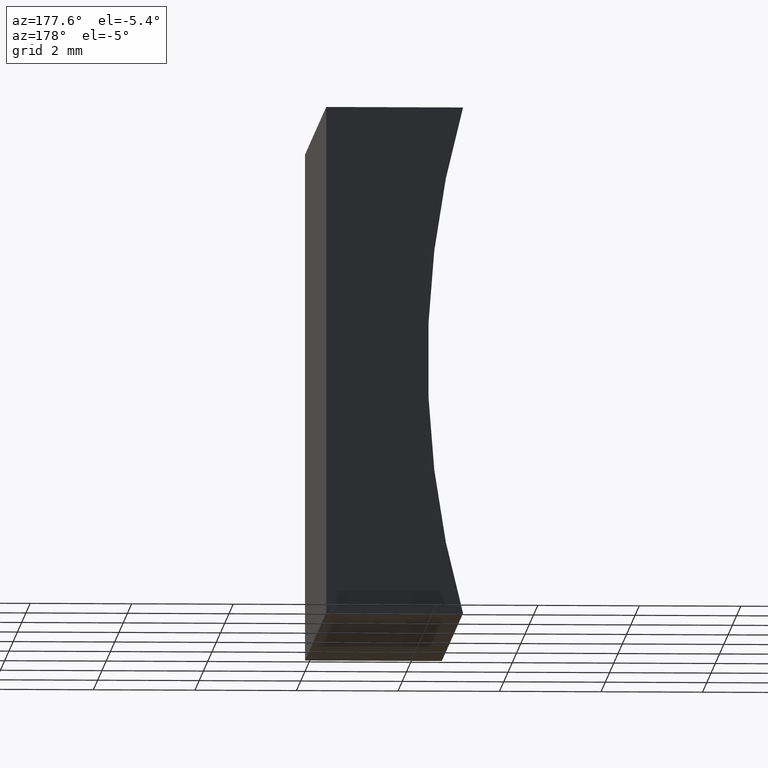
[diagram: clean part render]
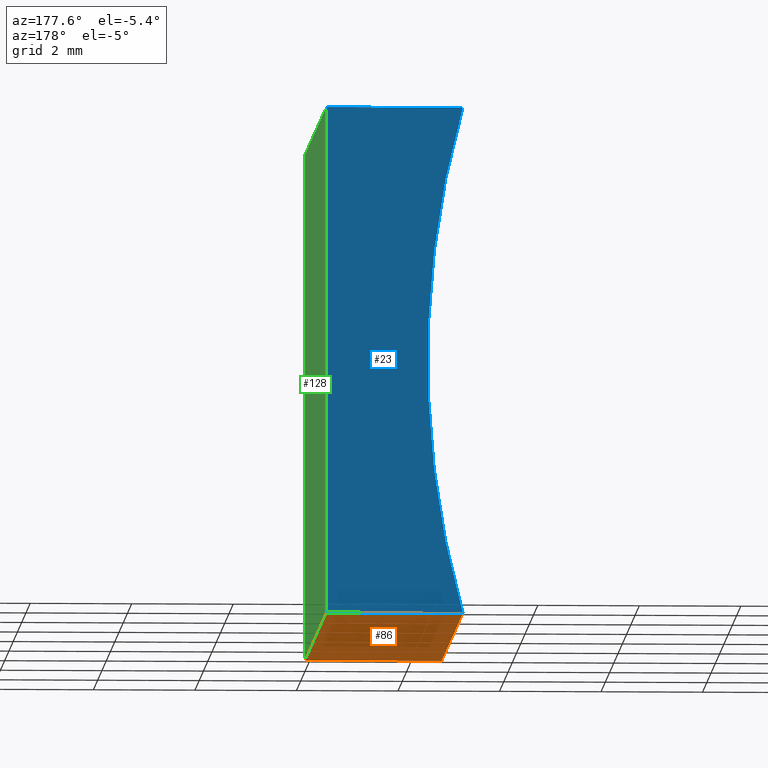
[diagram: same view with three faces highlighted in distinct colors, each labeled with its STEP entity id]
A machine part, auxiliary view with three faces highlighted in distinct colors.
Their STEP definitions:

[orange] entity #86 — the highlighted planar face has unit normal (0, -0, 1).
#2 = VECTOR ( 'NONE', #146, 1000.000000000000000 ) ;
#5 = EDGE_CURVE ( 'NONE', #133, #129, #28, .T. ) ;
#14 = CARTESIAN_POINT ( 'NONE',  ( 0.0000000000000000000, 0.0000000000000000000, 0.0000000000000000000 ) ) ;
#15 = CARTESIAN_POINT ( 'NONE',  ( 0.0000000000000000000, 10.00000000000000000, 0.0000000000000000000 ) ) ;
#20 = VECTOR ( 'NONE', #141, 1000.000000000000000 ) ;
#26 = AXIS2_PLACEMENT_3D ( 'NONE', #15, #202, #64 ) ;
#28 = LINE ( 'NONE', #134, #20 ) ;
#36 = CARTESIAN_POINT ( 'NONE',  ( 0.0000000000000000000, 0.0000000000000000000, 0.0000000000000000000 ) ) ;
#43 = VECTOR ( 'NONE', #174, 1000.000000000000000 ) ;
#45 = CARTESIAN_POINT ( 'NONE',  ( 0.0000000000000000000, 10.00000000000000000, 0.0000000000000000000 ) ) ;
#46 = FACE_OUTER_BOUND ( 'NONE', #153, .T. ) ;
#53 = EDGE_CURVE ( 'NONE', #102, #117, #152, .T. ) ;
#62 = EDGE_CURVE ( 'NONE', #133, #102, #65, .T. ) ;
#64 = DIRECTION ( 'NONE',  ( 1.000000000000000000, 0.0000000000000000000, -1.430855114987436600E-016 ) ) ;
#65 = LINE ( 'NONE', #200, #2 ) ;
#67 = CARTESIAN_POINT ( 'NONE',  ( -2.695517028860110000, 0.0000000000000000000, 8.673617379884035500E-016 ) ) ;
#71 = VECTOR ( 'NONE', #150, 1000.000000000000000 ) ;
#73 = LINE ( 'NONE', #36, #43 ) ;
#86 = ADVANCED_FACE ( 'NONE', ( #46 ), #113, .F. ) ;
#92 = CARTESIAN_POINT ( 'NONE',  ( -2.695517028860110000, 10.00000000000000000, 8.673617379884035500E-016 ) ) ;
#102 = VERTEX_POINT ( 'NONE', #163 ) ;
#113 = PLANE ( 'NONE',  #26 ) ;
#117 = VERTEX_POINT ( 'NONE', #67 ) ;
#129 = VERTEX_POINT ( 'NONE', #14 ) ;
#133 = VERTEX_POINT ( 'NONE', #45 ) ;
#134 = CARTESIAN_POINT ( 'NONE',  ( 0.0000000000000000000, 10.00000000000000000, 0.0000000000000000000 ) ) ;
#139 = EDGE_CURVE ( 'NONE', #129, #117, #73, .T. ) ;
#141 = DIRECTION ( 'NONE',  ( -0.0000000000000000000, -1.000000000000000000, -0.0000000000000000000 ) ) ;
#146 = DIRECTION ( 'NONE',  ( -1.000000000000000000, 0.0000000000000000000, 1.430855114987436600E-016 ) ) ;
#147 = ORIENTED_EDGE ( 'NONE', *, *, #53, .F. ) ;
#150 = DIRECTION ( 'NONE',  ( -0.0000000000000000000, -1.000000000000000000, -0.0000000000000000000 ) ) ;
#152 = LINE ( 'NONE', #92, #71 ) ;
#153 = EDGE_LOOP ( 'NONE', ( #168, #147, #194, #158 ) ) ;
#158 = ORIENTED_EDGE ( 'NONE', *, *, #5, .T. ) ;
#163 = CARTESIAN_POINT ( 'NONE',  ( -2.695517028860110000, 10.00000000000000000, 8.673617379884035500E-016 ) ) ;
#168 = ORIENTED_EDGE ( 'NONE', *, *, #139, .T. ) ;
#174 = DIRECTION ( 'NONE',  ( -1.000000000000000000, 0.0000000000000000000, 1.430855114987436600E-016 ) ) ;
#194 = ORIENTED_EDGE ( 'NONE', *, *, #62, .F. ) ;
#200 = CARTESIAN_POINT ( 'NONE',  ( 0.0000000000000000000, 10.00000000000000000, 0.0000000000000000000 ) ) ;
#202 = DIRECTION ( 'NONE',  ( 1.430855114987436600E-016, -0.0000000000000000000, 1.000000000000000000 ) ) ;

[blue] entity #23 — the highlighted planar face has unit normal (0, 1, 0).
#2 = VECTOR ( 'NONE', #146, 1000.000000000000000 ) ;
#3 = LINE ( 'NONE', #188, #68 ) ;
#16 = DIRECTION ( 'NONE',  ( 1.000000000000000000, -0.0000000000000000000, -6.435587152311161100E-016 ) ) ;
#19 = AXIS2_PLACEMENT_3D ( 'NONE', #197, #74, #186 ) ;
#23 = ADVANCED_FACE ( 'NONE', ( #32 ), #151, .T. ) ;
#29 = DIRECTION ( 'NONE',  ( 0.0000000000000000000, 1.000000000000000000, 0.0000000000000000000 ) ) ;
#32 = FACE_OUTER_BOUND ( 'NONE', #149, .T. ) ;
#35 = ORIENTED_EDGE ( 'NONE', *, *, #124, .T. ) ;
#45 = CARTESIAN_POINT ( 'NONE',  ( 0.0000000000000000000, 10.00000000000000000, 0.0000000000000000000 ) ) ;
#48 = EDGE_CURVE ( 'NONE', #102, #181, #172, .T. ) ;
#50 = EDGE_CURVE ( 'NONE', #180, #133, #58, .T. ) ;
#52 = DIRECTION ( 'NONE',  ( 0.0000000000000000000, -0.0000000000000000000, 1.000000000000000000 ) ) ;
#58 = LINE ( 'NONE', #108, #70 ) ;
#62 = EDGE_CURVE ( 'NONE', #133, #102, #65, .T. ) ;
#65 = LINE ( 'NONE', #200, #2 ) ;
#68 = VECTOR ( 'NONE', #16, 1000.000000000000000 ) ;
#70 = VECTOR ( 'NONE', #97, 1000.000000000000000 ) ;
#74 = DIRECTION ( 'NONE',  ( -0.0000000000000000000, -1.000000000000000000, -0.0000000000000000000 ) ) ;
#75 = AXIS2_PLACEMENT_3D ( 'NONE', #121, #29, #52 ) ;
#97 = DIRECTION ( 'NONE',  ( -6.123233995736766000E-017, -0.0000000000000000000, -1.000000000000000000 ) ) ;
#98 = CARTESIAN_POINT ( 'NONE',  ( 6.123233995736766300E-016, 10.00000000000000000, 10.00000000000000000 ) ) ;
#102 = VERTEX_POINT ( 'NONE', #163 ) ;
#108 = CARTESIAN_POINT ( 'NONE',  ( 0.0000000000000000000, 10.00000000000000000, 0.0000000000000000000 ) ) ;
#119 = ORIENTED_EDGE ( 'NONE', *, *, #48, .T. ) ;
#121 = CARTESIAN_POINT ( 'NONE',  ( -20.31999999999999700, 10.00000000000000000, 5.000000000000000000 ) ) ;
#123 = ORIENTED_EDGE ( 'NONE', *, *, #50, .T. ) ;
#124 = EDGE_CURVE ( 'NONE', #181, #180, #3, .T. ) ;
#133 = VERTEX_POINT ( 'NONE', #45 ) ;
#136 = ORIENTED_EDGE ( 'NONE', *, *, #62, .T. ) ;
#137 = CARTESIAN_POINT ( 'NONE',  ( -2.695517028860108200, 10.00000000000000000, 10.00000000000000200 ) ) ;
#146 = DIRECTION ( 'NONE',  ( -1.000000000000000000, 0.0000000000000000000, 1.430855114987436600E-016 ) ) ;
#149 = EDGE_LOOP ( 'NONE', ( #136, #119, #35, #123 ) ) ;
#151 = PLANE ( 'NONE',  #75 ) ;
#163 = CARTESIAN_POINT ( 'NONE',  ( -2.695517028860110000, 10.00000000000000000, 8.673617379884035500E-016 ) ) ;
#172 = CIRCLE ( 'NONE', #19, 18.31999999999999700 ) ;
#180 = VERTEX_POINT ( 'NONE', #98 ) ;
#181 = VERTEX_POINT ( 'NONE', #137 ) ;
#186 = DIRECTION ( 'NONE',  ( 0.0000000000000000000, 0.0000000000000000000, 1.000000000000000000 ) ) ;
#188 = CARTESIAN_POINT ( 'NONE',  ( 6.123233995736766300E-016, 10.00000000000000000, 10.00000000000000000 ) ) ;
#197 = CARTESIAN_POINT ( 'NONE',  ( -20.31999999999999700, 10.00000000000000000, 5.000000000000000000 ) ) ;
#200 = CARTESIAN_POINT ( 'NONE',  ( 0.0000000000000000000, 10.00000000000000000, 0.0000000000000000000 ) ) ;

[green] entity #128 — the highlighted planar face has unit normal (-1, 0, 0).
#5 = EDGE_CURVE ( 'NONE', #133, #129, #28, .T. ) ;
#14 = CARTESIAN_POINT ( 'NONE',  ( 0.0000000000000000000, 0.0000000000000000000, 0.0000000000000000000 ) ) ;
#20 = VECTOR ( 'NONE', #141, 1000.000000000000000 ) ;
#21 = EDGE_CURVE ( 'NONE', #105, #129, #203, .T. ) ;
#28 = LINE ( 'NONE', #134, #20 ) ;
#37 = CARTESIAN_POINT ( 'NONE',  ( 6.123233995736766300E-016, 10.00000000000000000, 10.00000000000000000 ) ) ;
#40 = FACE_OUTER_BOUND ( 'NONE', #77, .T. ) ;
#45 = CARTESIAN_POINT ( 'NONE',  ( 0.0000000000000000000, 10.00000000000000000, 0.0000000000000000000 ) ) ;
#50 = EDGE_CURVE ( 'NONE', #180, #133, #58, .T. ) ;
#51 = LINE ( 'NONE', #37, #76 ) ;
#58 = LINE ( 'NONE', #108, #70 ) ;
#59 = PLANE ( 'NONE',  #107 ) ;
#70 = VECTOR ( 'NONE', #97, 1000.000000000000000 ) ;
#76 = VECTOR ( 'NONE', #184, 1000.000000000000000 ) ;
#77 = EDGE_LOOP ( 'NONE', ( #177, #162, #157, #148 ) ) ;
#81 = DIRECTION ( 'NONE',  ( -1.000000000000000000, 0.0000000000000000000, 6.123233995736766000E-017 ) ) ;
#97 = DIRECTION ( 'NONE',  ( -6.123233995736766000E-017, -0.0000000000000000000, -1.000000000000000000 ) ) ;
#98 = CARTESIAN_POINT ( 'NONE',  ( 6.123233995736766300E-016, 10.00000000000000000, 10.00000000000000000 ) ) ;
#105 = VERTEX_POINT ( 'NONE', #196 ) ;
#107 = AXIS2_PLACEMENT_3D ( 'NONE', #142, #81, #169 ) ;
#108 = CARTESIAN_POINT ( 'NONE',  ( 0.0000000000000000000, 10.00000000000000000, 0.0000000000000000000 ) ) ;
#122 = DIRECTION ( 'NONE',  ( -6.123233995736766000E-017, -0.0000000000000000000, -1.000000000000000000 ) ) ;
#128 = ADVANCED_FACE ( 'NONE', ( #40 ), #59, .F. ) ;
#129 = VERTEX_POINT ( 'NONE', #14 ) ;
#133 = VERTEX_POINT ( 'NONE', #45 ) ;
#134 = CARTESIAN_POINT ( 'NONE',  ( 0.0000000000000000000, 10.00000000000000000, 0.0000000000000000000 ) ) ;
#141 = DIRECTION ( 'NONE',  ( -0.0000000000000000000, -1.000000000000000000, -0.0000000000000000000 ) ) ;
#142 = CARTESIAN_POINT ( 'NONE',  ( 0.0000000000000000000, 10.00000000000000000, 0.0000000000000000000 ) ) ;
#145 = VECTOR ( 'NONE', #122, 1000.000000000000000 ) ;
#148 = ORIENTED_EDGE ( 'NONE', *, *, #193, .T. ) ;
#157 = ORIENTED_EDGE ( 'NONE', *, *, #50, .F. ) ;
#162 = ORIENTED_EDGE ( 'NONE', *, *, #5, .F. ) ;
#169 = DIRECTION ( 'NONE',  ( 6.123233995736766000E-017, 0.0000000000000000000, 1.000000000000000000 ) ) ;
#176 = CARTESIAN_POINT ( 'NONE',  ( 0.0000000000000000000, 0.0000000000000000000, 0.0000000000000000000 ) ) ;
#177 = ORIENTED_EDGE ( 'NONE', *, *, #21, .T. ) ;
#180 = VERTEX_POINT ( 'NONE', #98 ) ;
#184 = DIRECTION ( 'NONE',  ( -0.0000000000000000000, -1.000000000000000000, -0.0000000000000000000 ) ) ;
#193 = EDGE_CURVE ( 'NONE', #180, #105, #51, .T. ) ;
#196 = CARTESIAN_POINT ( 'NONE',  ( 6.123233995736766300E-016, 0.0000000000000000000, 10.00000000000000000 ) ) ;
#203 = LINE ( 'NONE', #176, #145 ) ;